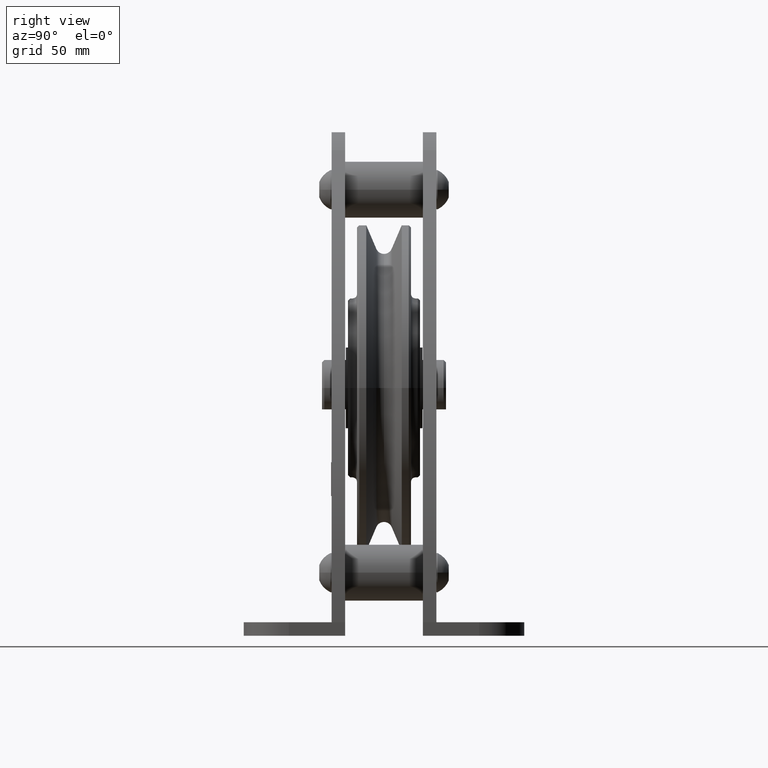
[diagram: clean part render]
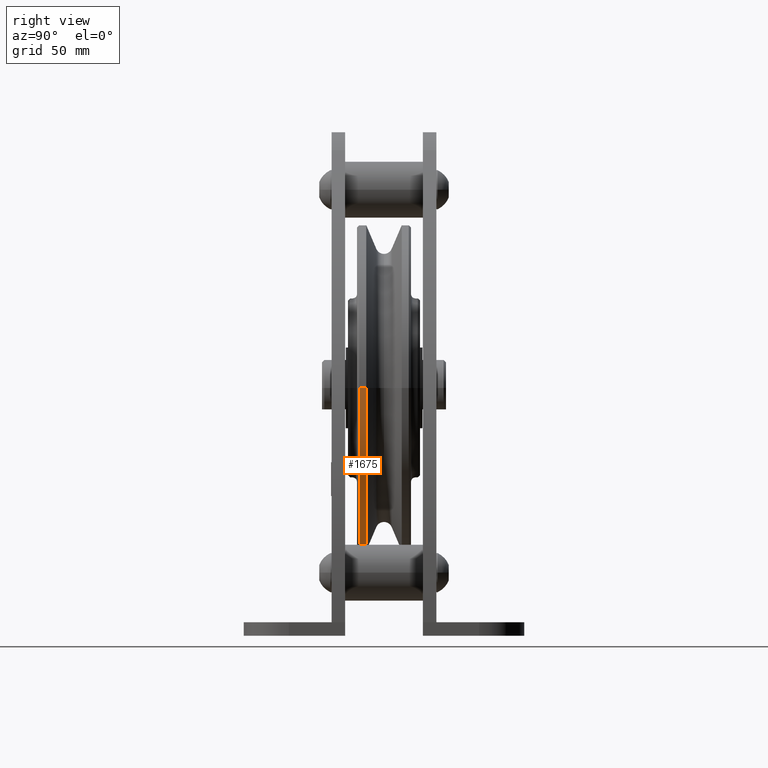
[diagram: same view with one face highlighted and labeled with its STEP entity id]
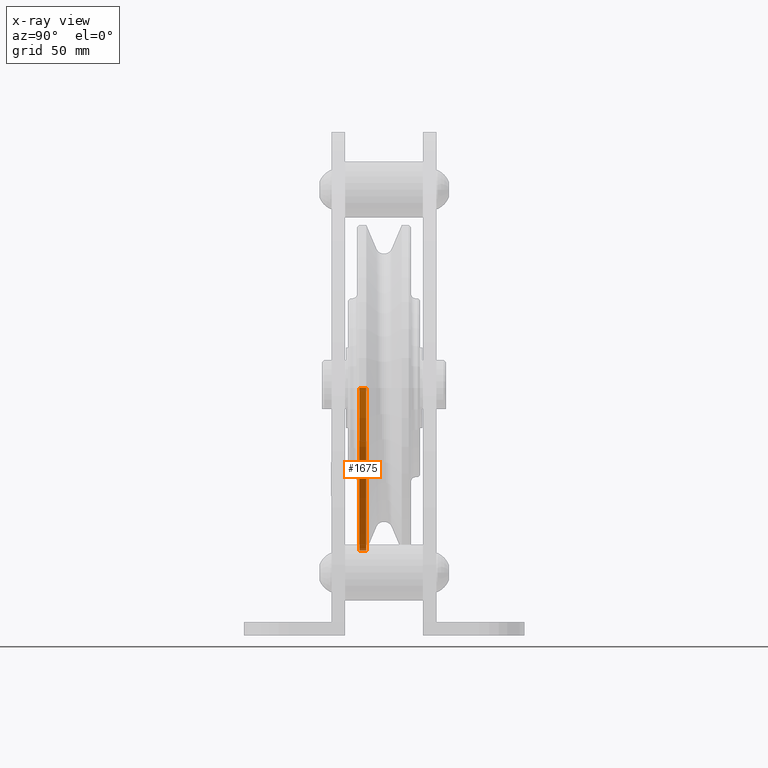
[diagram: x-ray of the same camera — body ghosted, the highlighted face saturated]
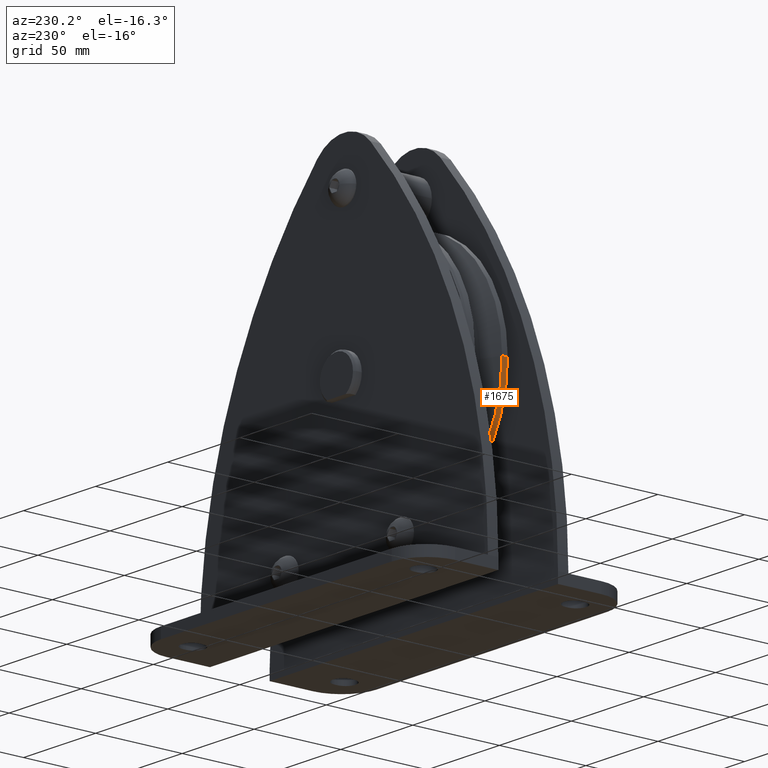
[diagram: same view with one face highlighted and labeled with its STEP entity id]
A machine part, right view. The second image highlights one B-rep face of the part: STEP entity #1675.
The next image is the same camera in x-ray: the body ghosted, the highlighted face saturated — about 1% of this face is hidden behind the body in this view.
A second angle (auxiliary view) of the same face is appended — the face is thin or edge-on in the first view.
In plain terms, the highlighted cylindrical surface (partial cylindrical patch) has radius 72.5 mm, axis along (0, -1, 0).
Its self-contained STEP definition (entity closure, byte-faithful):
#1675=ADVANCED_FACE('',(#3569),#3570,.T.);
#3569=FACE_OUTER_BOUND('',#5675,.T.);
#3570=CYLINDRICAL_SURFACE('',#5676,72.5);
#5675=EDGE_LOOP('',(#11046,#11047,#11048,#11049));
#5676=AXIS2_PLACEMENT_3D('',#11050,#11051,#11052);
#11046=ORIENTED_EDGE('',*,*,#12768,.T.);
#11047=ORIENTED_EDGE('',*,*,#14526,.F.);
#11048=ORIENTED_EDGE('',*,*,#12769,.T.);
#11049=ORIENTED_EDGE('',*,*,#14527,.T.);
#11050=CARTESIAN_POINT('',(0.0,-9.42851875,0.0));
#11051=DIRECTION('',(0.0,-1.0,0.0));
#11052=DIRECTION('',(1.0,0.0,0.0));
#12768=EDGE_CURVE('',#15322,#15397,#15406,.T.);
#12769=EDGE_CURVE('',#15400,#15324,#15407,.T.);
#14526=EDGE_CURVE('',#15400,#15397,#18018,.T.);
#14527=EDGE_CURVE('',#15324,#15322,#18019,.T.);
#15322=VERTEX_POINT('',#19774);
#15324=VERTEX_POINT('',#19777);
#15397=VERTEX_POINT('',#19865);
#15400=VERTEX_POINT('',#19869);
#15406=LINE('',#19876,#19877);
#15407=LINE('',#19878,#19879);
#18018=CIRCLE('',#25708,72.5);
#18019=CIRCLE('',#25709,72.5);
#19774=CARTESIAN_POINT('',(72.5,-7.8570375,0.0));
#19777=CARTESIAN_POINT('',(-72.5,-7.8570375,8.87868929381831E-015));
#19865=CARTESIAN_POINT('',(72.5,-11.0,0.0));
#19869=CARTESIAN_POINT('',(-72.5,-11.0,8.87868929381831E-015));
#19876=CARTESIAN_POINT('',(72.5,-9.42851875,-8.87868929381831E-015));
#19877=VECTOR('',#26931,1.0);
#19878=CARTESIAN_POINT('',(-72.5,-9.42851875,8.87868929381831E-015));
#19879=VECTOR('',#26932,1.0);
#25708=AXIS2_PLACEMENT_3D('',#28849,#28850,#28851);
#25709=AXIS2_PLACEMENT_3D('',#28852,#28853,#28854);
#26931=DIRECTION('',(0.0,-1.0,0.0));
#26932=DIRECTION('',(-0.0,1.0,-0.0));
#28849=CARTESIAN_POINT('',(0.0,-11.0,0.0));
#28850=DIRECTION('',(0.0,-1.0,0.0));
#28851=DIRECTION('',(1.0,0.0,0.0));
#28852=CARTESIAN_POINT('',(0.0,-7.8570375,0.0));
#28853=DIRECTION('',(0.0,-1.0,0.0));
#28854=DIRECTION('',(1.0,0.0,0.0));